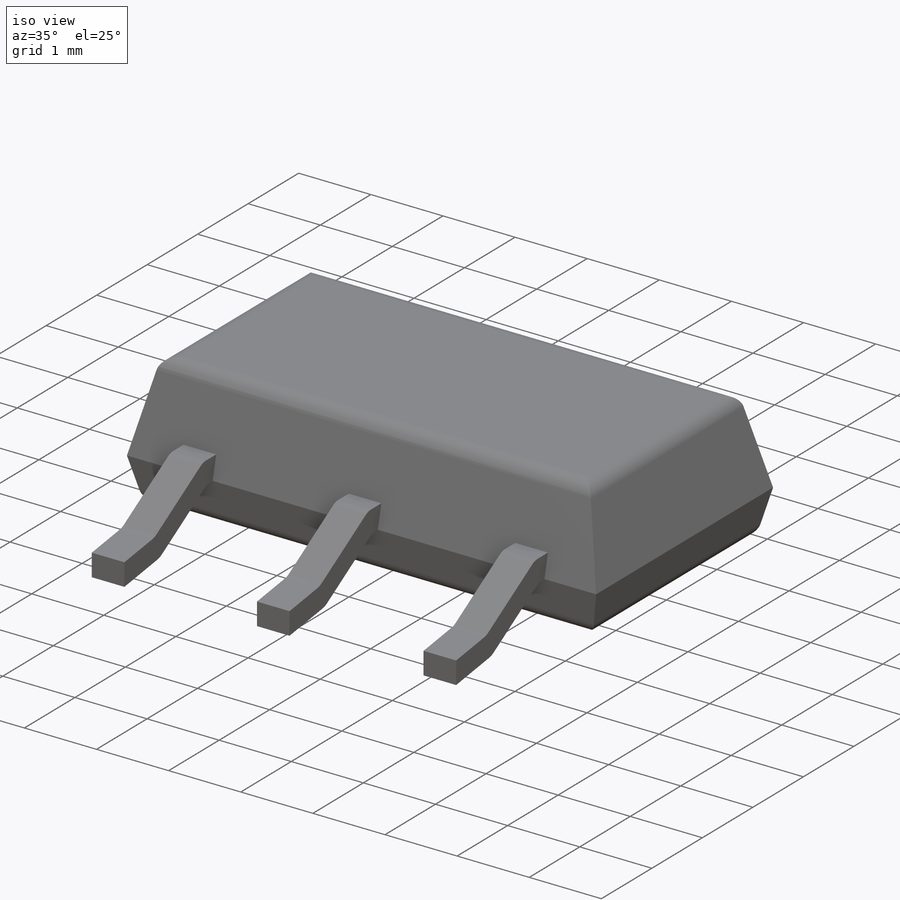
[diagram: iso view]
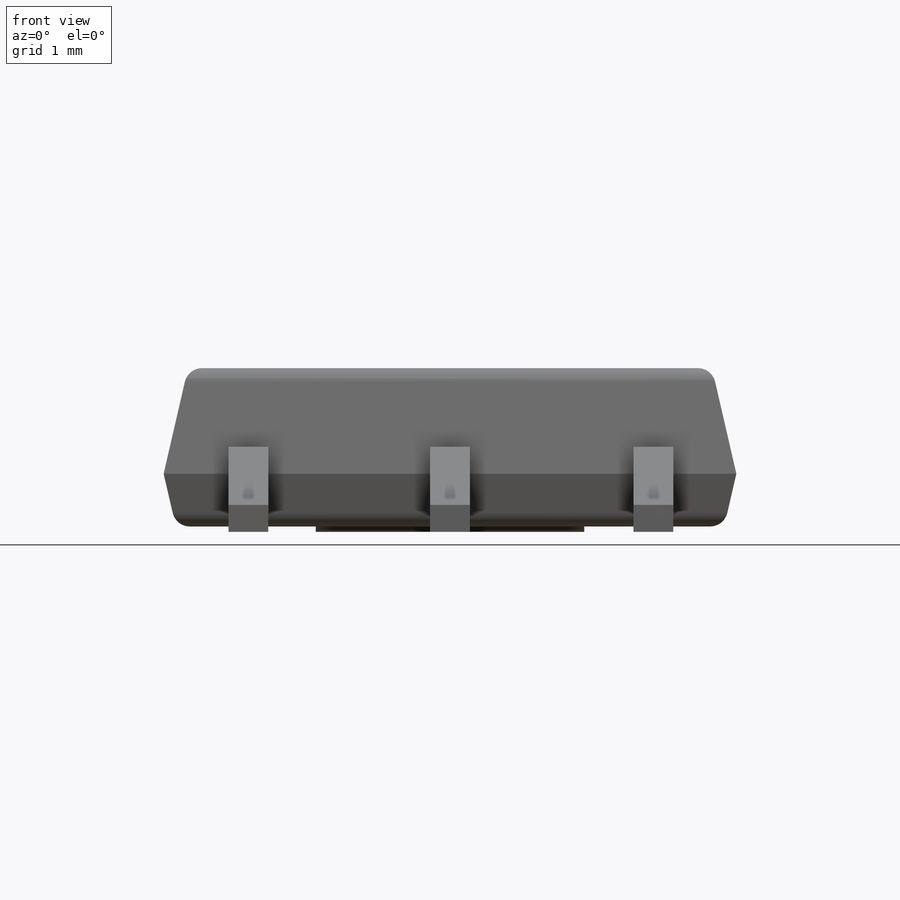
[diagram: front view]
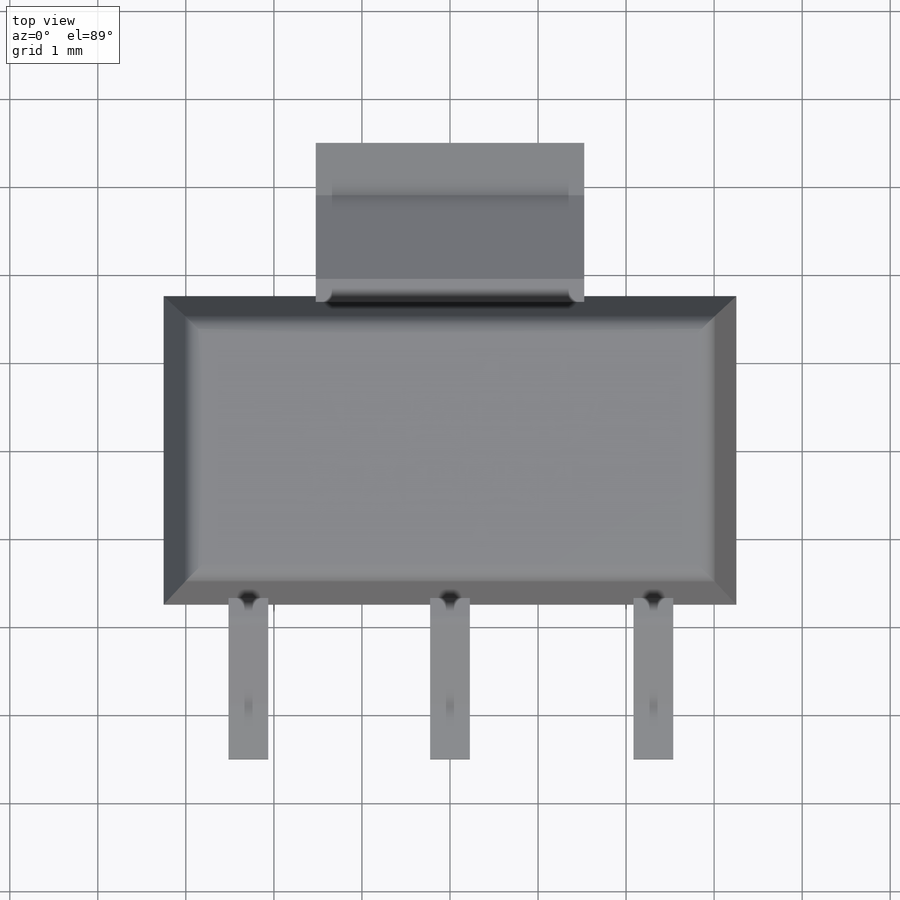
[diagram: top view]
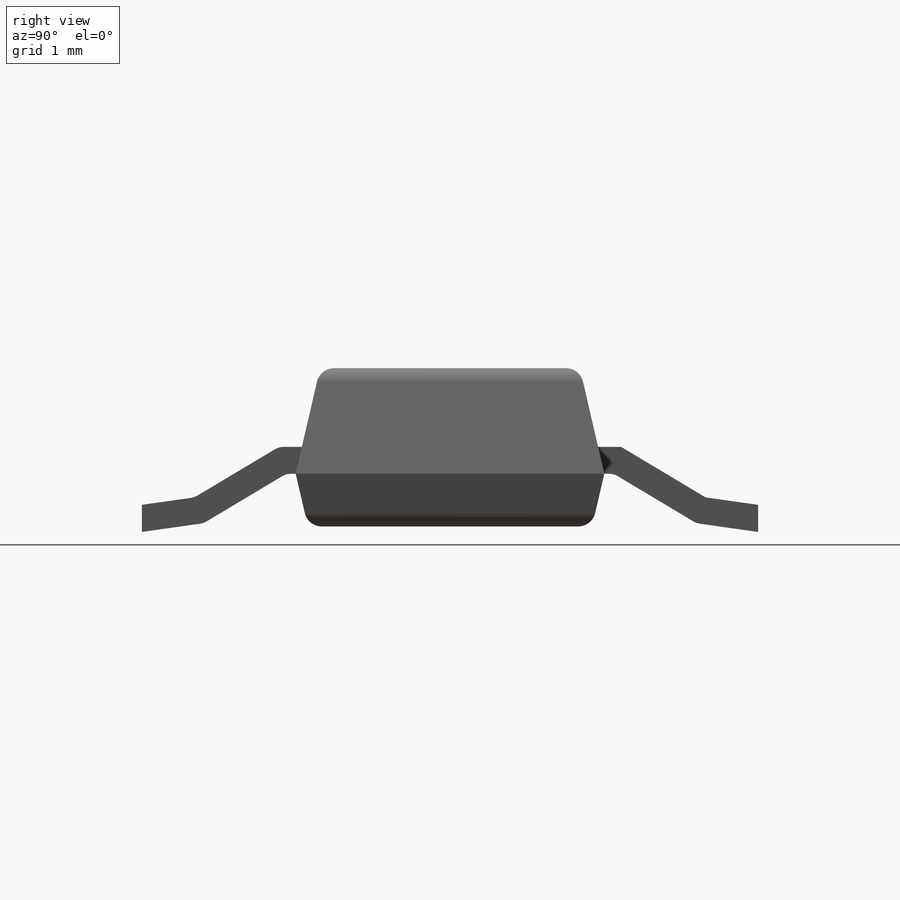
[diagram: right view]
SOLIDWORKS PART (.sldprt)
format: sldprt  version: not decoded by parser v0  size: 518,144 bytes
history: native  units: mm
features: sketch x7, extrude x6, plane x3, fillet x2, material x1, mirror x1 (+13 scaffold rows collapsed)
feature tree (33):
  scaffold x13  (default folders/planes/origin — collapsed)
  material  "Material <not specified>"
  sketch  "Sketch5"  dims[D1=3.505mm D2=6.505mm]
  extrude  "Boss-Extrude1"  Depth=1.2mm
  extrude  "Boss-Extrude2"  [1 undecoded]
  sketch  "Sketch5<2>"  dims[D1=0.6mm D3=13.0deg]
  sketch  "Sketch6"  dims[c1.D1=~1.196549mm c2.D1=8.0deg c2.D2=0.0611mm c2.D3=3.5mm c2.D4=0.7mm c2.D6=3.505mm c2.D5=0.305mm]
  extrude  "Boss-Extrude3"  Depth=0.452mm
  mirror  "Mirror1"
  sketch  "Sketch7"  dims[D1=0.0mm]
  extrude  "Boss-Extrude4"  Depth=3.05mm
  plane  "Plane4"  Offset=2.29mm
  plane  "Plane5"  Offset=4.6mm
  sketch  "Sketch8"  dims[D1=0.0mm]
  extrude  "Boss-Extrude5"  Depth=0.452mm
  sketch  "Sketch9"  dims[D1=0.0mm]
  extrude  "Boss-Extrude6"  Depth=0.452mm
  fillet  "Fillet1"  Radius=0.2mm
  fillet  "Fillet2"  Radius=0.2mm
  plane  "Plane6"  Offset=4.6mm
  sketch  "Sketch10"
decode coverage: 13 of 16 modeling features carry decoded parameters
note: ~ marks probable driven/reference dimensions
note: 1 parameter value undecoded
note: suppression state not decoded; provenance and decode notes live in map.json
